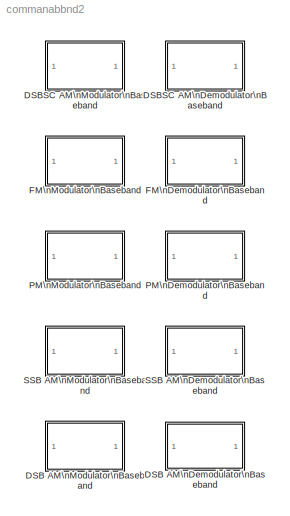
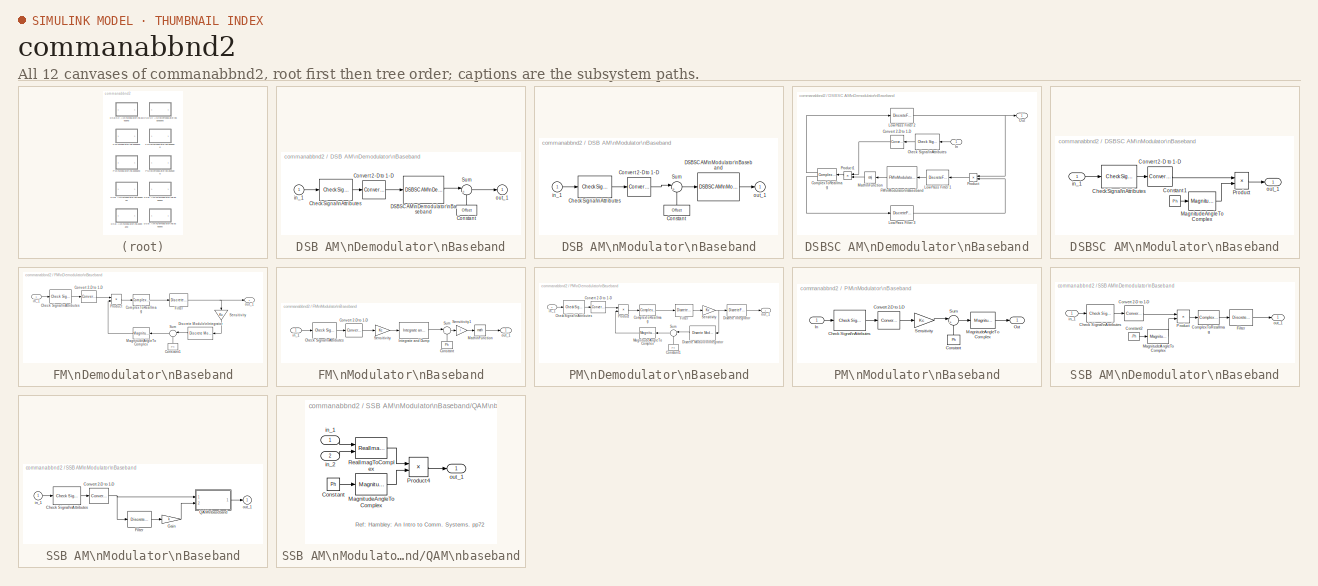
[diagram: thumbnail index - all 12 canvases of the model, root first then tree order]
MODEL commanabbnd2
KIND library
BLOCK [SubSystem] DSB AM\nDemodulator\nBaseband
  MaskCallbackString = ||||
  MaskDescription = Demodulate the complex envelope of a double-sideband amplitude modulated signal. The input signal must be a sample-based scalar.The output is a 1-D scalar.
  MaskDisplay = plot(0,0,100,100,[5+4.5*[0:.15:10] 50 50 50 50+4.5*[0:10]],[85+10*[sin([0:.15:10]*pi*2+cumsum(sin([0:.15:10]*pi/5))/2)] 85 99 75   10*sin([0:10]*pi/5)+85]);\ndisp('DSB AM')
  MaskEnableString = on,on,on,on,on
  MaskHelp = helpview(commbhelp)
  MaskIconFrame = on
  MaskIconOpaque = on
  MaskIconRotate = none
  MaskIconUnits = autoscale
  MaskInitialization = if ((length(Ph)~=1) | (length(Offset)~=1) | (length(ts)~=1))error('Mask parameters must be scalar values.');end;
  MaskPromptString = Output signal offset:|Lowpass filter numerator:|Lowpass filter denominator:|Initial phase (rad):|Sample time (s):
  MaskStyleString = edit,edit,edit,edit,edit
  MaskToolTipString = on,on,on,on,on
  MaskTunableValueString = on,on,on,on,on
  MaskType = DSB AM Demodulator Baseband
  MaskValueString = 1|[4.57 9.14 4.57]*.01|[1 -1.3108 .4936]|0|0.001
  MaskVarAliasString = ,,,,
  MaskVariables = Offset=@1;num=@2;den=@3;Ph=@4;ts=@5;
  MaskVisibilityString = on,on,on,on,on
  Ports = [1, 1]
  TreatAsAtomicUnit = off
BLOCK [Reference] DSB AM\nDemodulator\nBaseband/Check Signal\nAttributes  REF=dspsigattribs/Check Signal\nAttributes
  Complexity = Ignore
  DatatypeCheckMethod = Ignore
  DatatypeGeneral = Boolean
  Dimensions = Scalar (1-D or 2-D)
  DimsCheckMethod = Is...
  DtypeFixedSpecific = Any fixed-point
  DtypeFloatSpecific = Any floating-point
  DtypeIntSpecific = Any integer
  Frame = Sample-based
  Ports = [1, 1]
  SampleMode = Ignore
  SigAttribCheckMethod = Does not match attributes exactly
  SourceBlock = dspsigattribs/Check Signal\nAttributes
  SourceType = Check Signal Attributes
BLOCK [Constant] DSB AM\nDemodulator\nBaseband/Constant
  Value = Offset
BLOCK [Reference] DSB AM\nDemodulator\nBaseband/Convert 2-D to 1-D  REF=dspsigattribs/Convert 2-D to 1-D
  Ports = [1, 1]
  SourceBlock = dspsigattribs/Convert 2-D to 1-D
  SourceType = Convert 2-D to 1-D
BLOCK [Reference] DSB AM\nDemodulator\nBaseband/DSBSC AM\nDemodulator\nBaseband  REF=commanabbnd2/DSBSC AM\nDemodulator\nBaseband
  Ph = Ph
  Ports = [1, 1]
  SourceBlock = commanabbnd2/DSBSC AM\nDemodulator\nBaseband
  SourceType = DSBSC AM Demodulator Baseband
  den = den
  num = num
  ts = ts
BLOCK [Sum] DSB AM\nDemodulator\nBaseband/Sum
  IconShape = round
  Inputs = |+-
  Ports = [2, 1]
BLOCK [Inport] DSB AM\nDemodulator\nBaseband/in_1
BLOCK [Outport] DSB AM\nDemodulator\nBaseband/out_1
  InitialOutput = 0
BLOCK [SubSystem] DSB AM\nModulator\nBaseband
  MaskCallbackString = |
  MaskDescription = Output complex envelope of a double-sideband amplitude modulated signal. The input signal must be a sample-based scalar. The output is a 1-D scalar.
  MaskDisplay = plot(0,0,100,100,[4.5*[0:10]+5 50 50 50 50+4.5*[0:.15:10]],[10*sin([0:10]*pi/5)+85 85 99 75 85+10*[sin([0:.15:10]*pi*2+cumsum(sin([0:.15:10]*pi/5))/2)]]);\ndisp('DSB AM')
  MaskEnableString = on,on
  MaskHelp = helpview(commbhelp)
  MaskIconFrame = on
  MaskIconOpaque = on
  MaskIconRotate = none
  MaskIconUnits = autoscale
  MaskInitialization = if ((length(Ph)~=1) | (length(Offset)~=1))error('Mask parameters must be scalar values.');end;
  MaskPromptString = Input signal offset:|Initial phase (rad):
  MaskStyleString = edit,edit
  MaskToolTipString = on,on
  MaskTunableValueString = on,on
  MaskType = DSB AM Modulator Baseband
  MaskValueString = 1|0
  MaskVarAliasString = ,
  MaskVariables = Offset=@1;Ph=@2;
  MaskVisibilityString = on,on
  Ports = [1, 1]
  TreatAsAtomicUnit = off
BLOCK [Reference] DSB AM\nModulator\nBaseband/Check Signal\nAttributes  REF=dspsigattribs/Check Signal\nAttributes
  Complexity = Ignore
  DatatypeCheckMethod = Ignore
  DatatypeGeneral = Boolean
  Dimensions = Scalar (1-D or 2-D)
  DimsCheckMethod = Is...
  DtypeFixedSpecific = Any fixed-point
  DtypeFloatSpecific = Any floating-point
  DtypeIntSpecific = Any integer
  Frame = Sample-based
  Ports = [1, 1]
  SampleMode = Ignore
  SigAttribCheckMethod = Does not match attributes exactly
  SourceBlock = dspsigattribs/Check Signal\nAttributes
  SourceType = Check Signal Attributes
BLOCK [Constant] DSB AM\nModulator\nBaseband/Constant
  Value = Offset
BLOCK [Reference] DSB AM\nModulator\nBaseband/Convert 2-D to 1-D  REF=dspsigattribs/Convert 2-D to 1-D
  Ports = [1, 1]
  SourceBlock = dspsigattribs/Convert 2-D to 1-D
  SourceType = Convert 2-D to 1-D
BLOCK [Reference] DSB AM\nModulator\nBaseband/DSBSC AM\nModulator\nBaseband  REF=commanabbnd2/DSBSC AM\nModulator\nBaseband
  Ph = Ph
  Ports = [1, 1]
  SourceBlock = commanabbnd2/DSBSC AM\nModulator\nBaseband
  SourceType = DSBSC AM Modulator Baseband
BLOCK [Sum] DSB AM\nModulator\nBaseband/Sum
  IconShape = round
  Inputs = |++
  Ports = [2, 1]
BLOCK [Inport] DSB AM\nModulator\nBaseband/in_1
BLOCK [Outport] DSB AM\nModulator\nBaseband/out_1
  InitialOutput = 0
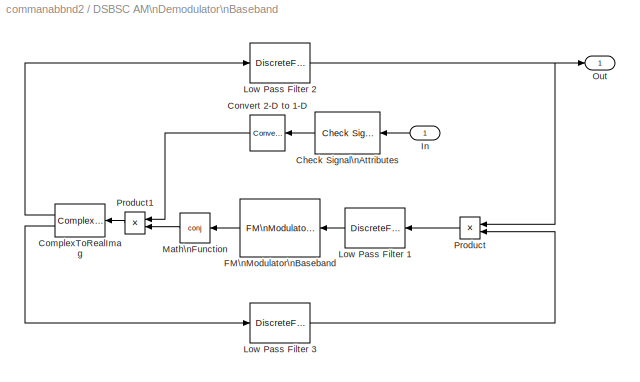
BLOCK [SubSystem] DSBSC AM\nDemodulator\nBaseband
  MaskCallbackString = |||
  MaskDescription = Demodulate the complex envelope of a double-sideband suppressed carrier amplitude modulated signal. The input signal must be a sample-based scalar. The output is a 1-D scalar.
  MaskDisplay = plot(0,0,100,100,[5+4.5*[0:.15:10] 50 50 50 50+4.5*[0:10]],[85+10*[sin([0:.15:10]*pi*2+cumsum(sin([0:.15:10]*pi/5))/2)] 85 99 75   10*sin([0:10]*pi/5)+85]);\ndisp('DSBSC AM')
  MaskEnableString = on,on,on,on
  MaskHelp = helpview(commbhelp)
  MaskIconFrame = on
  MaskIconOpaque = on
  MaskIconRotate = none
  MaskIconUnits = autoscale
  MaskInitialization = if ((length(Ph)~=1) | (length(ts)~=1))error('Mask parameters must be scalar values.');end;\npi2=pi*2;\n
  MaskPromptString = Lowpass filter numerator:|Lowpass filter denominator:|Initial phase (rad):|Sample time (s):
  MaskStyleString = edit,edit,edit,edit
  MaskToolTipString = on,on,on,on
  MaskTunableValueString = on,on,on,on
  MaskType = DSBSC AM Demodulator Baseband
  MaskValueString = [4.57 9.14 4.57]*.01|[1 -1.3108 .4936]|pi/2|0.001
  MaskVarAliasString = ,,,
  MaskVariables = num=@1;den=@2;Ph=@3;ts=@4;
  MaskVisibilityString = on,on,on,on
  Ports = [1, 1]
  TreatAsAtomicUnit = off
BLOCK [Reference] DSBSC AM\nDemodulator\nBaseband/Check Signal\nAttributes  REF=dspsigattribs/Check Signal\nAttributes
  Complexity = Ignore
  DatatypeCheckMethod = Ignore
  DatatypeGeneral = Boolean
  Dimensions = Scalar (1-D or 2-D)
  DimsCheckMethod = Is...
  DtypeFixedSpecific = Any fixed-point
  DtypeFloatSpecific = Any floating-point
  DtypeIntSpecific = Any integer
  Frame = Sample-based
  Ports = [1, 1]
  SampleMode = Ignore
  SigAttribCheckMethod = Does not match attributes exactly
  SourceBlock = dspsigattribs/Check Signal\nAttributes
  SourceType = Check Signal Attributes
BLOCK [ComplexToRealImag] DSBSC AM\nDemodulator\nBaseband/ComplexToRealImag
  Output = Real and imag
  Ports = [1, 2]
BLOCK [Reference] DSBSC AM\nDemodulator\nBaseband/Convert 2-D to 1-D  REF=dspsigattribs/Convert 2-D to 1-D
  Ports = [1, 1]
  SourceBlock = dspsigattribs/Convert 2-D to 1-D
  SourceType = Convert 2-D to 1-D
BLOCK [Reference] DSBSC AM\nDemodulator\nBaseband/FM\nModulator\nBaseband  REF=commanabbnd2/FM\nModulator\nBaseband
  HzPerV = 1
  Ph = Ph
  Ports = [1, 1]
  SourceBlock = commanabbnd2/FM\nModulator\nBaseband
  SourceType = FM Modulator Baseband
  td = Inf
  ts = ts
BLOCK [Inport] DSBSC AM\nDemodulator\nBaseband/In
  MaskIconFrame = on
  MaskIconOpaque = on
  MaskIconRotate = none
  MaskIconUnits = autoscale
BLOCK [DiscreteFilter] DSBSC AM\nDemodulator\nBaseband/Low Pass Filter 1
  Denominator = den
  Numerator = num
  SampleTime = ts
BLOCK [DiscreteFilter] DSBSC AM\nDemodulator\nBaseband/Low Pass Filter 2
  Denominator = den
  Numerator = num
  SampleTime = ts
BLOCK [DiscreteFilter] DSBSC AM\nDemodulator\nBaseband/Low Pass Filter 3
  Denominator = den
  Numerator = num
  SampleTime = ts
BLOCK [Math] DSBSC AM\nDemodulator\nBaseband/Math\nFunction
  Operator = conj
  Ports = [1, 1]
BLOCK [Outport] DSBSC AM\nDemodulator\nBaseband/Out
  InitialOutput = 0
BLOCK [Product] DSBSC AM\nDemodulator\nBaseband/Product
  Ports = [2, 1]
BLOCK [Product] DSBSC AM\nDemodulator\nBaseband/Product1
  Ports = [2, 1]
BLOCK [SubSystem] DSBSC AM\nModulator\nBaseband
  MaskDescription = Output the complex envelope of a double-sideband suppressed carrier amplitude modulated signal. The input signal must be a sample-based scalar. The output is a 1-D scalar.
  MaskDisplay = plot(0,0,100,100,[4.5*[0:10]+5 50 50 50 50+4.5*[0:.15:10]],[10*sin([0:10]*pi/5)+85 85 99 75 85+10*[sin([0:.15:10]*pi*2+cumsum(sin([0:.15:10]*pi/5))/2)]]);\ndisp('DSBSC AM')
  MaskEnableString = on
  MaskHelp = helpview(commbhelp)
  MaskIconFrame = on
  MaskIconOpaque = on
  MaskIconRotate = none
  MaskIconUnits = autoscale
  MaskInitialization = if (length(Ph)~=1) error('Mask parameters must be scalar values.');end;\nx1=cos(Ph);x2=sin(Ph);pi2=2*pi;\n
  MaskPromptString = Initial phase (rad):
  MaskStyleString = edit
  MaskToolTipString = on
  MaskTunableValueString = on
  MaskType = DSBSC AM Modulator Baseband
  MaskValueString = pi/2
  MaskVariables = Ph=@1;
  MaskVisibilityString = on
  Ports = [1, 1]
  TreatAsAtomicUnit = off
BLOCK [Reference] DSBSC AM\nModulator\nBaseband/Check Signal\nAttributes  REF=dspsigattribs/Check Signal\nAttributes
  Complexity = Ignore
  DatatypeCheckMethod = Ignore
  DatatypeGeneral = Boolean
  Dimensions = Scalar (1-D or 2-D)
  DimsCheckMethod = Is...
  DtypeFixedSpecific = Any fixed-point
  DtypeFloatSpecific = Any floating-point
  DtypeIntSpecific = Any integer
  Frame = Sample-based
  Ports = [1, 1]
  SampleMode = Ignore
  SigAttribCheckMethod = Does not match attributes exactly
  SourceBlock = dspsigattribs/Check Signal\nAttributes
  SourceType = Check Signal Attributes
BLOCK [Constant] DSBSC AM\nModulator\nBaseband/Constant 1
  Value = Ph
BLOCK [Reference] DSBSC AM\nModulator\nBaseband/Convert 2-D to 1-D  REF=dspsigattribs/Convert 2-D to 1-D
  Ports = [1, 1]
  SourceBlock = dspsigattribs/Convert 2-D to 1-D
  SourceType = Convert 2-D to 1-D
BLOCK [MagnitudeAngleToComplex] DSBSC AM\nModulator\nBaseband/MagnitudeAngleToComplex
  ConstantPart = 1
  Input = Angle
  Ports = [1, 1]
BLOCK [Product] DSBSC AM\nModulator\nBaseband/Product
  Ports = [2, 1]
BLOCK [Inport] DSBSC AM\nModulator\nBaseband/in_1
BLOCK [Outport] DSBSC AM\nModulator\nBaseband/out_1
  InitialOutput = 0
BLOCK [SubSystem] FM\nDemodulator\nBaseband
  MaskCallbackString = ||||
  MaskDescription = Demodulate the complex envelope of a frequency-modulated signal. The input signal must be a sample-based scalar. The output is a 1-D scalar.
  MaskDisplay = plot(0,0,100,100,[5+4.5*[0:.15:10] 50 50 50 50+4.5*[0:10]],[85+10*[sin([0:.15:10]*pi*2+cumsum(sin([0:.15:10]*pi/5))/2)] 85 99 75   10*sin([0:10]*pi/5)+85]);\ndisp('FM')
  MaskEnableString = on,on,on,on,on
  MaskHelp = helpview(commbhelp)
  MaskIconFrame = on
  MaskIconOpaque = on
  MaskIconRotate = none
  MaskIconUnits = autoscale
  MaskInitialization = if ((length(Ph)~=1) | (length(HzPerVolt)~=1) | (length(ts)~=1))error('Mask parameters must be scalar values.');end;\npi2=2*pi;\nKc=2*pi*HzPerVolt;
  MaskPromptString = Initial phase (rad):|Modulation constant (Hertz per volt):|Lowpass filter numerator:|Lowpass filter denominator:|Sample time (s):
  MaskStyleString = edit,edit,edit,edit,edit
  MaskToolTipString = on,on,on,on,on
  MaskTunableValueString = on,on,on,on,on
  MaskType = FM Demodulator Baseband
  MaskValueString = 0|1|[4.57 9.14 4.57]*.01|[1 -1.3108 .4936]|0.001
  MaskVarAliasString = ,,,,
  MaskVariables = Ph=@1;HzPerVolt=@2;num=@3;den=@4;ts=@5;
  MaskVisibilityString = on,on,on,on,on
  Ports = [1, 1]
  TreatAsAtomicUnit = off
BLOCK [Reference] FM\nDemodulator\nBaseband/Check Signal\nAttributes  REF=dspsigattribs/Check Signal\nAttributes
  Complexity = Ignore
  DatatypeCheckMethod = Ignore
  DatatypeGeneral = Boolean
  Dimensions = Scalar (1-D or 2-D)
  DimsCheckMethod = Is...
  DtypeFixedSpecific = Any fixed-point
  DtypeFloatSpecific = Any floating-point
  DtypeIntSpecific = Any integer
  Frame = Sample-based
  Ports = [1, 1]
  SampleMode = Ignore
  SigAttribCheckMethod = Does not match attributes exactly
  SourceBlock = dspsigattribs/Check Signal\nAttributes
  SourceType = Check Signal Attributes
BLOCK [ComplexToRealImag] FM\nDemodulator\nBaseband/ComplexToRealImag
  Output = Imag
  Ports = [1, 1]
BLOCK [Constant] FM\nDemodulator\nBaseband/Constant1
  MaskIconFrame = on
  MaskIconOpaque = on
  MaskIconRotate = none
  MaskIconUnits = autoscale
  Value = Ph
BLOCK [Reference] FM\nDemodulator\nBaseband/Convert 2-D to 1-D  REF=dspsigattribs/Convert 2-D to 1-D
  Ports = [1, 1]
  SourceBlock = dspsigattribs/Convert 2-D to 1-D
  SourceType = Convert 2-D to 1-D
BLOCK [Reference] FM\nDemodulator\nBaseband/Discrete Modulo\nIntegrator  REF=comminteg2/Discrete Modulo\nIntegrator
  Ports = [1, 1]
  SourceBlock = comminteg2/Discrete Modulo\nIntegrator
  SourceType = Discrete Modulo Integrator
  init = 0
  modu = pi2
  ts = ts
BLOCK [DiscreteFilter] FM\nDemodulator\nBaseband/Filter
  Denominator = den
  Numerator = num
  SampleTime = ts
BLOCK [MagnitudeAngleToComplex] FM\nDemodulator\nBaseband/MagnitudeAngleToComplex
  ConstantPart = 1
  Input = Angle
  Ports = [1, 1]
BLOCK [Product] FM\nDemodulator\nBaseband/Product
  Ports = [2, 1]
BLOCK [Gain] FM\nDemodulator\nBaseband/Sensitivity
  Gain = Kc
  MaskIconFrame = on
  MaskIconOpaque = on
  MaskIconRotate = none
  MaskIconUnits = autoscale
BLOCK [Sum] FM\nDemodulator\nBaseband/Sum
  IconShape = round
  Inputs = |-+
  MaskIconFrame = on
  MaskIconOpaque = on
  MaskIconRotate = none
  MaskIconUnits = autoscale
  Ports = [2, 1]
BLOCK [Inport] FM\nDemodulator\nBaseband/in_1
BLOCK [Outport] FM\nDemodulator\nBaseband/out_1
  InitialOutput = 0
BLOCK [SubSystem] FM\nModulator\nBaseband
  MaskCallbackString = |||
  MaskDescription = Output complex baseband signal frequency-modulated by the input signal.  For digital modulation, set the Symbol Interval parameter to the desired symbol.  For analog modulation, set the Symbol Interval parameter to Inf. The input signal must be a sample-based scalar. The output is a 1-D scalar.
  MaskDisplay = plot(0,0,100,100,[4.5*[0:10]+5 50 50 50 50+4.5*[0:.15:10]],[10*sin([0:10]*pi/5)+85 85 99 75 85+10*[sin([0:.15:10]*pi*2+cumsum(sin([0:.15:10]*pi/5))/2)]]);\ndisp('FM')
  MaskEnableString = on,on,on,on
  MaskHelp = helpview(commbhelp)
  MaskIconFrame = on
  MaskIconOpaque = on
  MaskIconRotate = none
  MaskIconUnits = autoscale
  MaskInitialization = if ((length(Ph)~=1) | (length(HzPerV)~=1) | (length(ts)~=1) | (length(td)~=1))error('Mask parameters must be scalar values.');end;\nKc =2*pi*HzPerV;if isinf(td),td=realmax;end;\n
  MaskPromptString = Initial phase (rad):|Modulation constant (Hertz per volt):|Sample time (s):|Symbol interval (s):
  MaskStyleString = edit,edit,edit,edit
  MaskToolTipString = on,on,on,on
  MaskTunableValueString = on,on,on,on
  MaskType = FM Modulator Baseband
  MaskValueString = 0|1|0.001|Inf
  MaskVarAliasString = ,,,
  MaskVariables = Ph=@1;HzPerV=@2;ts=@3;td=@4;
  MaskVisibilityString = on,on,on,on
  Ports = [1, 1]
  TreatAsAtomicUnit = off
BLOCK [Reference] FM\nModulator\nBaseband/Check Signal\nAttributes  REF=dspsigattribs/Check Signal\nAttributes
  Complexity = Ignore
  DatatypeCheckMethod = Ignore
  DatatypeGeneral = Boolean
  Dimensions = Scalar (1-D or 2-D)
  DimsCheckMethod = Is...
  DtypeFixedSpecific = Any fixed-point
  DtypeFloatSpecific = Any floating-point
  DtypeIntSpecific = Any integer
  Frame = Sample-based
  Ports = [1, 1]
  SampleMode = Ignore
  SigAttribCheckMethod = Does not match attributes exactly
  SourceBlock = dspsigattribs/Check Signal\nAttributes
  SourceType = Check Signal Attributes
BLOCK [Constant] FM\nModulator\nBaseband/Constant
  Value = Ph
BLOCK [Reference] FM\nModulator\nBaseband/Convert 2-D to 1-D  REF=dspsigattribs/Convert 2-D to 1-D
  Ports = [1, 1]
  SourceBlock = dspsigattribs/Convert 2-D to 1-D
  SourceType = Convert 2-D to 1-D
BLOCK [Reference] FM\nModulator\nBaseband/Integrate and Dump  REF=comminteg2/Integrate and Dump
  Ports = [1, 1]
  SourceBlock = comminteg2/Integrate and Dump
  SourceType = Integrate and Dump
  limit = 2*pi
  td = td
  ts = ts
BLOCK [Math] FM\nModulator\nBaseband/Math\nFunction
  Ports = [1, 1]
BLOCK [Gain] FM\nModulator\nBaseband/Sensitivity
  Gain = Kc
BLOCK [Gain] FM\nModulator\nBaseband/Sensitivity1
  Gain = i
BLOCK [Sum] FM\nModulator\nBaseband/Sum
  IconShape = round
  Inputs = |++
  Ports = [2, 1]
BLOCK [Inport] FM\nModulator\nBaseband/in_1
BLOCK [Outport] FM\nModulator\nBaseband/out_1
  InitialOutput = 0
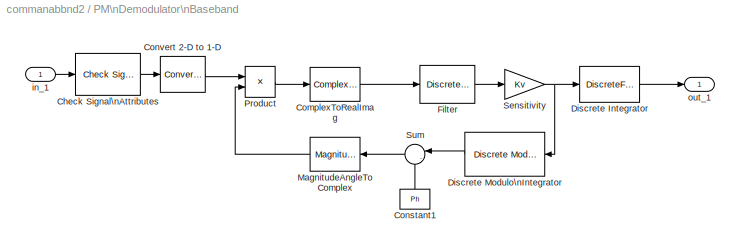
BLOCK [SubSystem] PM\nDemodulator\nBaseband
  MaskCallbackString = |||||
  MaskDescription = Demodulate the complex envelope of a phase-modulated signal. The input signal must be a sample-based scalar. The output is a 1-D scalar.
  MaskDisplay = plot(0,0,100,100,[5+4.5*[0:.15:10] 50 50 50 50+4.5*[0:10]],[85+10*[sin([0:.15:10]*pi*2+cumsum(sin([0:.15:10]*pi/5))/2)] 85 99 75   10*sin([0:10]*pi/5)+85]);\ndisp('PM')
  MaskEnableString = on,on,on,on,on,on
  MaskHelp = helpview(commbhelp)
  MaskIconFrame = on
  MaskIconOpaque = on
  MaskIconRotate = none
  MaskIconUnits = autoscale
  MaskInitialization = if ((length(Ph)~=1) | (length(HzPerVolt)~=1) | (length(ts)~=1) | (length(Kc)~=1))error('Mask parameters must be scalar values.');end;\nKv=2*pi*HzPerVolt;
  MaskPromptString = Initial phase (rad):|Modulation constant (Radians per volt):|Lowpass filter numerator:|Lowpass filter denominator:|VCO gain (Hertz per volt):|Sample time (s):
  MaskStyleString = edit,edit,edit,edit,edit,edit
  MaskToolTipString = on,on,on,on,on,on
  MaskTunableValueString = on,on,on,on,on,on
  MaskType = PM Demodulator Baseband
  MaskValueString = 0|1|[4.57 9.14 4.57]*.01|[1 -1.3108 .4936]|1|0.001
  MaskVarAliasString = ,,,,,
  MaskVariables = Ph=@1;Kc=@2;num=@3;den=@4;HzPerVolt=@5;ts=@6;
  MaskVisibilityString = on,on,on,on,on,on
  Ports = [1, 1]
  TreatAsAtomicUnit = off
BLOCK [Reference] PM\nDemodulator\nBaseband/Check Signal\nAttributes  REF=dspsigattribs/Check Signal\nAttributes
  Complexity = Ignore
  DatatypeCheckMethod = Ignore
  DatatypeGeneral = Boolean
  Dimensions = Scalar (1-D or 2-D)
  DimsCheckMethod = Is...
  DtypeFixedSpecific = Any fixed-point
  DtypeFloatSpecific = Any floating-point
  DtypeIntSpecific = Any integer
  Frame = Sample-based
  Ports = [1, 1]
  SampleMode = Ignore
  SigAttribCheckMethod = Does not match attributes exactly
  SourceBlock = dspsigattribs/Check Signal\nAttributes
  SourceType = Check Signal Attributes
BLOCK [ComplexToRealImag] PM\nDemodulator\nBaseband/ComplexToRealImag
  Output = Imag
  Ports = [1, 1]
BLOCK [Constant] PM\nDemodulator\nBaseband/Constant1
  MaskIconFrame = on
  MaskIconOpaque = on
  MaskIconRotate = none
  MaskIconUnits = autoscale
  Value = Ph
BLOCK [Reference] PM\nDemodulator\nBaseband/Convert 2-D to 1-D  REF=dspsigattribs/Convert 2-D to 1-D
  Ports = [1, 1]
  SourceBlock = dspsigattribs/Convert 2-D to 1-D
  SourceType = Convert 2-D to 1-D
BLOCK [DiscreteFilter] PM\nDemodulator\nBaseband/Discrete Integrator
  Denominator = [1 -1]*Kc
  Numerator = ts(1)
  SampleTime = ts
BLOCK [Reference] PM\nDemodulator\nBaseband/Discrete Modulo\nIntegrator  REF=comminteg2/Discrete Modulo\nIntegrator
  Ports = [1, 1]
  SourceBlock = comminteg2/Discrete Modulo\nIntegrator
  SourceType = Discrete Modulo Integrator
  init = 0
  modu = 2*pi
  ts = ts
BLOCK [DiscreteFilter] PM\nDemodulator\nBaseband/Filter
  Denominator = den
  Numerator = num
  SampleTime = ts
BLOCK [MagnitudeAngleToComplex] PM\nDemodulator\nBaseband/MagnitudeAngleToComplex
  ConstantPart = 1
  Input = Angle
  Ports = [1, 1]
BLOCK [Product] PM\nDemodulator\nBaseband/Product
  Ports = [2, 1]
BLOCK [Gain] PM\nDemodulator\nBaseband/Sensitivity
  Gain = Kv
  MaskIconFrame = on
  MaskIconOpaque = on
  MaskIconRotate = none
  MaskIconUnits = autoscale
BLOCK [Sum] PM\nDemodulator\nBaseband/Sum
  IconShape = round
  Inputs = |--
  MaskIconFrame = on
  MaskIconOpaque = on
  MaskIconRotate = none
  MaskIconUnits = autoscale
  Ports = [2, 1]
BLOCK [Inport] PM\nDemodulator\nBaseband/in_1
BLOCK [Outport] PM\nDemodulator\nBaseband/out_1
  InitialOutput = 0
BLOCK [SubSystem] PM\nModulator\nBaseband
  MaskCallbackString = |
  MaskDescription = Output the complex envelope of a phase-modulated signal. The input signal must be a sample-based scalar. The output is a 1-D scalar.
  MaskDisplay = plot(0,0,100,100,[4.5*[0:10]+5 50 50 50 50+4.5*[0:.15:10]],[10*sin([0:10]*pi/5)+85 85 99 75 85+10*[sin([0:.15:10]*pi*2+cumsum(sin([0:.15:10]*pi/5))/2)]]);\ndisp('PM')
  MaskEnableString = on,on
  MaskHelp = helpview(commbhelp)
  MaskIconFrame = on
  MaskIconOpaque = on
  MaskIconRotate = none
  MaskIconUnits = autoscale
  MaskInitialization = if ((length(Ph)~=1) | (length(Kc)~=1))error('Mask parameters must be scalar values.');end;\n
  MaskPromptString = Initial phase (rad):|Modulation constant (Radians per volt):
  MaskStyleString = edit,edit
  MaskToolTipString = on,on
  MaskTunableValueString = on,on
  MaskType = PM Modulator Baseband
  MaskValueString = 0|1
  MaskVarAliasString = ,
  MaskVariables = Ph=@1;Kc=@2;
  MaskVisibilityString = on,on
  Ports = [1, 1]
  TreatAsAtomicUnit = off
BLOCK [Reference] PM\nModulator\nBaseband/Check Signal\nAttributes  REF=dspsigattribs/Check Signal\nAttributes
  Complexity = Ignore
  DatatypeCheckMethod = Ignore
  DatatypeGeneral = Boolean
  Dimensions = Scalar (1-D or 2-D)
  DimsCheckMethod = Is...
  DtypeFixedSpecific = Any fixed-point
  DtypeFloatSpecific = Any floating-point
  DtypeIntSpecific = Any integer
  Frame = Sample-based
  Ports = [1, 1]
  SampleMode = Ignore
  SigAttribCheckMethod = Does not match attributes exactly
  SourceBlock = dspsigattribs/Check Signal\nAttributes
  SourceType = Check Signal Attributes
BLOCK [Constant] PM\nModulator\nBaseband/Constant
  Value = Ph
BLOCK [Reference] PM\nModulator\nBaseband/Convert 2-D to 1-D  REF=dspsigattribs/Convert 2-D to 1-D
  Ports = [1, 1]
  SourceBlock = dspsigattribs/Convert 2-D to 1-D
  SourceType = Convert 2-D to 1-D
BLOCK [Inport] PM\nModulator\nBaseband/In
BLOCK [MagnitudeAngleToComplex] PM\nModulator\nBaseband/MagnitudeAngleToComplex
  ConstantPart = 1
  Input = Angle
  Ports = [1, 1]
BLOCK [Outport] PM\nModulator\nBaseband/Out
  InitialOutput = 0
BLOCK [Gain] PM\nModulator\nBaseband/Sensitivity
  Gain = Kc
BLOCK [Sum] PM\nModulator\nBaseband/Sum
  IconShape = round
  Inputs = |++
  Ports = [2, 1]
BLOCK [SubSystem] SSB AM\nDemodulator\nBaseband
  MaskCallbackString = |||
  MaskDescription = Demodulate the complex envelope of a single-sideband amplitude modulated signal. The input signal must be a sample-based scalar. The output is a 1-D scalar.
  MaskDisplay = plot(0,0,100,100,[5+4.5*[0:.15:10] 50 50 50 50+4.5*[0:10]],[85+10*[sin([0:.15:10]*pi*2+cumsum(sin([0:.15:10]*pi/5))/2)] 85 99 75   10*sin([0:10]*pi/5)+85]);\ndisp('SSB AM')
  MaskEnableString = on,on,on,on
  MaskHelp = helpview(commbhelp)
  MaskIconFrame = on
  MaskIconOpaque = on
  MaskIconRotate = none
  MaskIconUnits = autoscale
  MaskInitialization = if ((length(Ph)~=1) | (length(ts)~=1))error('Mask parameters must be scalar values.');end;\nx1=cos(-Ph);x2=sin(-Ph);\n
  MaskPromptString = Lowpass filter numerator:|Lowpass filter denominator:|Initial phase (rad):|Sample time (s):
  MaskStyleString = edit,edit,edit,edit
  MaskToolTipString = on,on,on,on
  MaskTunableValueString = on,on,on,on
  MaskType = SSB AM Demodulator Baseband
  MaskValueString = [4.57 9.14 4.57]*.01|[1 -1.3108 .4936]|0|0.001
  MaskVarAliasString = ,,,
  MaskVariables = num=@1;den=@2;Ph=@3;ts=@4;
  MaskVisibilityString = on,on,on,on
  Ports = [1, 1]
  TreatAsAtomicUnit = off
BLOCK [Reference] SSB AM\nDemodulator\nBaseband/Check Signal\nAttributes  REF=dspsigattribs/Check Signal\nAttributes
  Complexity = Ignore
  DatatypeCheckMethod = Ignore
  DatatypeGeneral = Boolean
  Dimensions = Scalar (1-D or 2-D)
  DimsCheckMethod = Is...
  DtypeFixedSpecific = Any fixed-point
  DtypeFloatSpecific = Any floating-point
  DtypeIntSpecific = Any integer
  Frame = Sample-based
  Ports = [1, 1]
  SampleMode = Ignore
  SigAttribCheckMethod = Does not match attributes exactly
  SourceBlock = dspsigattribs/Check Signal\nAttributes
  SourceType = Check Signal Attributes
BLOCK [ComplexToRealImag] SSB AM\nDemodulator\nBaseband/ComplexToRealImag
  Output = Real
  Ports = [1, 1]
BLOCK [Constant] SSB AM\nDemodulator\nBaseband/Constant2
  Value = -Ph
BLOCK [Reference] SSB AM\nDemodulator\nBaseband/Convert 2-D to 1-D  REF=dspsigattribs/Convert 2-D to 1-D
  Ports = [1, 1]
  SourceBlock = dspsigattribs/Convert 2-D to 1-D
  SourceType = Convert 2-D to 1-D
BLOCK [DiscreteFilter] SSB AM\nDemodulator\nBaseband/Filter
  Denominator = den
  Numerator = num
  SampleTime = ts
BLOCK [MagnitudeAngleToComplex] SSB AM\nDemodulator\nBaseband/MagnitudeAngleToComplex
  ConstantPart = 1
  Input = Angle
  Ports = [1, 1]
BLOCK [Product] SSB AM\nDemodulator\nBaseband/Product
  Ports = [2, 1]
BLOCK [Inport] SSB AM\nDemodulator\nBaseband/in_1
BLOCK [Outport] SSB AM\nDemodulator\nBaseband/out_1
  InitialOutput = 0
BLOCK [SubSystem] SSB AM\nModulator\nBaseband
  MaskCallbackString = ||||
  MaskDescription = Output complex envelope of a single-sideband amplitude modulated signal. The input signal must be a sample-based scalar. The output is a 1-D scalar.
  MaskDisplay = plot(0,0,100,100,[4.5*[0:10]+5 50 50 50 50+4.5*[0:.15:10]],[10*sin([0:10]*pi/5)+85 85 99 75 85+10*[sin([0:.15:10]*pi*2+cumsum(sin([0:.15:10]*pi/5))/2)]]);\ndisp('SSB AM')
  MaskEnableString = on,on,on,on,on
  MaskHelp = helpview(commbhelp)
  MaskIconFrame = on
  MaskIconOpaque = on
  MaskIconRotate = none
  MaskIconUnits = autoscale
  MaskInitialization = if ((length(Ph)~=1) | (length(ban)~=1) | (length(ts)~=1) | (length(dly)~=1))error('Mask parameters must be scalar values.');end;\nif dly/ts<3 error('Time delay is too small compared to the Sample time value');end;\nif ban>1/ts, ban=1/ts-ts;end;if(dly/ts>1000)\nerror(['The filter coefficients will take too long to compute.'...\n        'Try reducing the length of the impulse response by increasing ...<+144ch>
  MaskPromptString = Initial phase (rad):|Bandwidth of the input signal (Hz):|Time delay for Hilbert transform filter (s):|Sample time (s):|Sideband to modulate:
  MaskStyleString = edit,edit,edit,edit,popup(Upper|Lower)
  MaskToolTipString = on,on,on,on,on
  MaskTunableValueString = on,on,on,on,on
  MaskType = SSB AM Modulator Baseband
  MaskValueString = 0|10|0.01|0.001|upper
  MaskVarAliasString = ,,,,
  MaskVariables = Ph=@1;ban=@2;dly=@3;ts=@4;sd=&5;
  MaskVisibilityString = on,on,on,on,on
  Ports = [1, 1]
  TreatAsAtomicUnit = off
BLOCK [Reference] SSB AM\nModulator\nBaseband/Check Signal\nAttributes  REF=dspsigattribs/Check Signal\nAttributes
  Complexity = Ignore
  DatatypeCheckMethod = Ignore
  DatatypeGeneral = Boolean
  Dimensions = Scalar (1-D or 2-D)
  DimsCheckMethod = Is...
  DtypeFixedSpecific = Any fixed-point
  DtypeFloatSpecific = Any floating-point
  DtypeIntSpecific = Any integer
  Frame = Sample-based
  Ports = [1, 1]
  SampleMode = Ignore
  SigAttribCheckMethod = Does not match attributes exactly
  SourceBlock = dspsigattribs/Check Signal\nAttributes
  SourceType = Check Signal Attributes
BLOCK [Reference] SSB AM\nModulator\nBaseband/Convert 2-D to 1-D  REF=dspsigattribs/Convert 2-D to 1-D
  Ports = [1, 1]
  SourceBlock = dspsigattribs/Convert 2-D to 1-D
  SourceType = Convert 2-D to 1-D
BLOCK [DiscreteFilter] SSB AM\nModulator\nBaseband/Filter
  Denominator = den
  Numerator = num
  SampleTime = ts
BLOCK [Gain] SSB AM\nModulator\nBaseband/Gain
  Gain = k
BLOCK [SubSystem] SSB AM\nModulator\nBaseband/QAM\nbaseband
  MaskDescription = Modulate the in-phase and quadrature component signal from the 1st and 2nd input ports, baseband simulation.
  MaskDisplay = plot(0,0,100,100,[4.5*[0:10]+5 50 50 50 50+4.5*[0:.3:10]],[10*sin([0:10]*pi/5)+85 85 99 75 85+10*[sin([0:.3:10]*pi/5).*sin([0:.3:10]*pi*2)]]);\ndisp('QAM')
  MaskEnableString = on
  MaskHelp = helpview(commbhelp)
  MaskIconFrame = on
  MaskIconOpaque = on
  MaskIconRotate = none
  MaskIconUnits = autoscale
  MaskInitialization = \n
  MaskPromptString = Initial phase (rad):
  MaskStyleString = edit
  MaskToolTipString = on
  MaskTunableValueString = on
  MaskType = QAM Baseband
  MaskValueString = Ph
  MaskVariables = Ph=@1;
  MaskVisibilityString = on
  Ports = [2, 1]
  TreatAsAtomicUnit = off
BLOCK [Constant] SSB AM\nModulator\nBaseband/QAM\nbaseband/Constant
  Value = Ph
BLOCK [MagnitudeAngleToComplex] SSB AM\nModulator\nBaseband/QAM\nbaseband/MagnitudeAngleToComplex
  ConstantPart = 1
  Input = Angle
  Ports = [1, 1]
BLOCK [Product] SSB AM\nModulator\nBaseband/QAM\nbaseband/Product4
  Ports = [2, 1]
BLOCK [RealImagToComplex] SSB AM\nModulator\nBaseband/QAM\nbaseband/RealImagToComplex
  Input = Real and imag
  Ports = [2, 1]
BLOCK [Inport] SSB AM\nModulator\nBaseband/QAM\nbaseband/in_1
BLOCK [Inport] SSB AM\nModulator\nBaseband/QAM\nbaseband/in_2
  Port = 2
BLOCK [Outport] SSB AM\nModulator\nBaseband/QAM\nbaseband/out_1
  InitialOutput = 0
BLOCK [Inport] SSB AM\nModulator\nBaseband/in_1
BLOCK [Outport] SSB AM\nModulator\nBaseband/out_1
  InitialOutput = 0
ANNOTATION SSB AM\nModulator\nBaseband/QAM\nbaseband: Ref: Hambley: An Intro to Comm. Systems. pp72
LINE DSB AM\nDemodulator\nBaseband/Check Signal\nAttributes:1 -> DSB AM\nDemodulator\nBaseband/Convert 2-D to 1-D:1
LINE DSB AM\nDemodulator\nBaseband/Constant:1 -> DSB AM\nDemodulator\nBaseband/Sum:2
LINE DSB AM\nDemodulator\nBaseband/Convert 2-D to 1-D:1 -> DSB AM\nDemodulator\nBaseband/DSBSC AM\nDemodulator\nBaseband:1
LINE DSB AM\nDemodulator\nBaseband/DSBSC AM\nDemodulator\nBaseband:1 -> DSB AM\nDemodulator\nBaseband/Sum:1
LINE DSB AM\nDemodulator\nBaseband/Sum:1 -> DSB AM\nDemodulator\nBaseband/out_1:1
LINE DSB AM\nDemodulator\nBaseband/in_1:1 -> DSB AM\nDemodulator\nBaseband/Check Signal\nAttributes:1
LINE DSB AM\nModulator\nBaseband/Check Signal\nAttributes:1 -> DSB AM\nModulator\nBaseband/Convert 2-D to 1-D:1
LINE DSB AM\nModulator\nBaseband/Constant:1 -> DSB AM\nModulator\nBaseband/Sum:2
LINE DSB AM\nModulator\nBaseband/Convert 2-D to 1-D:1 -> DSB AM\nModulator\nBaseband/Sum:1
LINE DSB AM\nModulator\nBaseband/DSBSC AM\nModulator\nBaseband:1 -> DSB AM\nModulator\nBaseband/out_1:1
LINE DSB AM\nModulator\nBaseband/Sum:1 -> DSB AM\nModulator\nBaseband/DSBSC AM\nModulator\nBaseband:1
LINE DSB AM\nModulator\nBaseband/in_1:1 -> DSB AM\nModulator\nBaseband/Check Signal\nAttributes:1
LINE DSBSC AM\nDemodulator\nBaseband/Check Signal\nAttributes:1 -> DSBSC AM\nDemodulator\nBaseband/Convert 2-D to 1-D:1
LINE DSBSC AM\nDemodulator\nBaseband/ComplexToRealImag:1 -> DSBSC AM\nDemodulator\nBaseband/Low Pass Filter 2:1
LINE DSBSC AM\nDemodulator\nBaseband/ComplexToRealImag:2 -> DSBSC AM\nDemodulator\nBaseband/Low Pass Filter 3:1
LINE DSBSC AM\nDemodulator\nBaseband/Convert 2-D to 1-D:1 -> DSBSC AM\nDemodulator\nBaseband/Product1:1
LINE DSBSC AM\nDemodulator\nBaseband/FM\nModulator\nBaseband:1 -> DSBSC AM\nDemodulator\nBaseband/Math\nFunction:1
LINE DSBSC AM\nDemodulator\nBaseband/In:1 -> DSBSC AM\nDemodulator\nBaseband/Check Signal\nAttributes:1
LINE DSBSC AM\nDemodulator\nBaseband/Low Pass Filter 1:1 -> DSBSC AM\nDemodulator\nBaseband/FM\nModulator\nBaseband:1
NET DSBSC AM\nDemodulator\nBaseband/Low Pass Filter 2:1 -> DSBSC AM\nDemodulator\nBaseband/Out:1, DSBSC AM\nDemodulator\nBaseband/Product:1
LINE DSBSC AM\nDemodulator\nBaseband/Low Pass Filter 3:1 -> DSBSC AM\nDemodulator\nBaseband/Product:2
LINE DSBSC AM\nDemodulator\nBaseband/Math\nFunction:1 -> DSBSC AM\nDemodulator\nBaseband/Product1:2
LINE DSBSC AM\nDemodulator\nBaseband/Product1:1 -> DSBSC AM\nDemodulator\nBaseband/ComplexToRealImag:1
LINE DSBSC AM\nDemodulator\nBaseband/Product:1 -> DSBSC AM\nDemodulator\nBaseband/Low Pass Filter 1:1
LINE DSBSC AM\nModulator\nBaseband/Check Signal\nAttributes:1 -> DSBSC AM\nModulator\nBaseband/Convert 2-D to 1-D:1
LINE DSBSC AM\nModulator\nBaseband/Constant 1:1 -> DSBSC AM\nModulator\nBaseband/MagnitudeAngleToComplex:1
LINE DSBSC AM\nModulator\nBaseband/Convert 2-D to 1-D:1 -> DSBSC AM\nModulator\nBaseband/Product:1
LINE DSBSC AM\nModulator\nBaseband/MagnitudeAngleToComplex:1 -> DSBSC AM\nModulator\nBaseband/Product:2
LINE DSBSC AM\nModulator\nBaseband/Product:1 -> DSBSC AM\nModulator\nBaseband/out_1:1
LINE DSBSC AM\nModulator\nBaseband/in_1:1 -> DSBSC AM\nModulator\nBaseband/Check Signal\nAttributes:1
LINE FM\nDemodulator\nBaseband/Check Signal\nAttributes:1 -> FM\nDemodulator\nBaseband/Convert 2-D to 1-D:1
LINE FM\nDemodulator\nBaseband/ComplexToRealImag:1 -> FM\nDemodulator\nBaseband/Filter:1
LINE FM\nDemodulator\nBaseband/Constant1:1 -> FM\nDemodulator\nBaseband/Sum:2
LINE FM\nDemodulator\nBaseband/Convert 2-D to 1-D:1 -> FM\nDemodulator\nBaseband/Product:1
LINE FM\nDemodulator\nBaseband/Discrete Modulo\nIntegrator:1 -> FM\nDemodulator\nBaseband/Sum:1
NET FM\nDemodulator\nBaseband/Filter:1 -> FM\nDemodulator\nBaseband/Sensitivity:1, FM\nDemodulator\nBaseband/out_1:1
LINE FM\nDemodulator\nBaseband/MagnitudeAngleToComplex:1 -> FM\nDemodulator\nBaseband/Product:2
LINE FM\nDemodulator\nBaseband/Product:1 -> FM\nDemodulator\nBaseband/ComplexToRealImag:1
LINE FM\nDemodulator\nBaseband/Sensitivity:1 -> FM\nDemodulator\nBaseband/Discrete Modulo\nIntegrator:1
LINE FM\nDemodulator\nBaseband/Sum:1 -> FM\nDemodulator\nBaseband/MagnitudeAngleToComplex:1
LINE FM\nDemodulator\nBaseband/in_1:1 -> FM\nDemodulator\nBaseband/Check Signal\nAttributes:1
LINE FM\nModulator\nBaseband/Check Signal\nAttributes:1 -> FM\nModulator\nBaseband/Convert 2-D to 1-D:1
LINE FM\nModulator\nBaseband/Constant:1 -> FM\nModulator\nBaseband/Sum:2
LINE FM\nModulator\nBaseband/Convert 2-D to 1-D:1 -> FM\nModulator\nBaseband/Sensitivity:1
LINE FM\nModulator\nBaseband/Integrate and Dump:1 -> FM\nModulator\nBaseband/Sum:1
LINE FM\nModulator\nBaseband/Math\nFunction:1 -> FM\nModulator\nBaseband/out_1:1
LINE FM\nModulator\nBaseband/Sensitivity1:1 -> FM\nModulator\nBaseband/Math\nFunction:1
LINE FM\nModulator\nBaseband/Sensitivity:1 -> FM\nModulator\nBaseband/Integrate and Dump:1
LINE FM\nModulator\nBaseband/Sum:1 -> FM\nModulator\nBaseband/Sensitivity1:1
LINE FM\nModulator\nBaseband/in_1:1 -> FM\nModulator\nBaseband/Check Signal\nAttributes:1
LINE PM\nDemodulator\nBaseband/Check Signal\nAttributes:1 -> PM\nDemodulator\nBaseband/Convert 2-D to 1-D:1
LINE PM\nDemodulator\nBaseband/ComplexToRealImag:1 -> PM\nDemodulator\nBaseband/Filter:1
LINE PM\nDemodulator\nBaseband/Constant1:1 -> PM\nDemodulator\nBaseband/Sum:2
LINE PM\nDemodulator\nBaseband/Convert 2-D to 1-D:1 -> PM\nDemodulator\nBaseband/Product:1
LINE PM\nDemodulator\nBaseband/Discrete Integrator:1 -> PM\nDemodulator\nBaseband/out_1:1
LINE PM\nDemodulator\nBaseband/Discrete Modulo\nIntegrator:1 -> PM\nDemodulator\nBaseband/Sum:1
LINE PM\nDemodulator\nBaseband/Filter:1 -> PM\nDemodulator\nBaseband/Sensitivity:1
LINE PM\nDemodulator\nBaseband/MagnitudeAngleToComplex:1 -> PM\nDemodulator\nBaseband/Product:2
LINE PM\nDemodulator\nBaseband/Product:1 -> PM\nDemodulator\nBaseband/ComplexToRealImag:1
NET PM\nDemodulator\nBaseband/Sensitivity:1 -> PM\nDemodulator\nBaseband/Discrete Integrator:1, PM\nDemodulator\nBaseband/Discrete Modulo\nIntegrator:1
LINE PM\nDemodulator\nBaseband/Sum:1 -> PM\nDemodulator\nBaseband/MagnitudeAngleToComplex:1
LINE PM\nDemodulator\nBaseband/in_1:1 -> PM\nDemodulator\nBaseband/Check Signal\nAttributes:1
LINE PM\nModulator\nBaseband/Check Signal\nAttributes:1 -> PM\nModulator\nBaseband/Convert 2-D to 1-D:1
LINE PM\nModulator\nBaseband/Constant:1 -> PM\nModulator\nBaseband/Sum:2
LINE PM\nModulator\nBaseband/Convert 2-D to 1-D:1 -> PM\nModulator\nBaseband/Sensitivity:1
LINE PM\nModulator\nBaseband/In:1 -> PM\nModulator\nBaseband/Check Signal\nAttributes:1
LINE PM\nModulator\nBaseband/MagnitudeAngleToComplex:1 -> PM\nModulator\nBaseband/Out:1
LINE PM\nModulator\nBaseband/Sensitivity:1 -> PM\nModulator\nBaseband/Sum:1
LINE PM\nModulator\nBaseband/Sum:1 -> PM\nModulator\nBaseband/MagnitudeAngleToComplex:1
LINE SSB AM\nDemodulator\nBaseband/Check Signal\nAttributes:1 -> SSB AM\nDemodulator\nBaseband/Convert 2-D to 1-D:1
LINE SSB AM\nDemodulator\nBaseband/ComplexToRealImag:1 -> SSB AM\nDemodulator\nBaseband/Filter:1
LINE SSB AM\nDemodulator\nBaseband/Constant2:1 -> SSB AM\nDemodulator\nBaseband/MagnitudeAngleToComplex:1
LINE SSB AM\nDemodulator\nBaseband/Convert 2-D to 1-D:1 -> SSB AM\nDemodulator\nBaseband/Product:1
LINE SSB AM\nDemodulator\nBaseband/Filter:1 -> SSB AM\nDemodulator\nBaseband/out_1:1
LINE SSB AM\nDemodulator\nBaseband/MagnitudeAngleToComplex:1 -> SSB AM\nDemodulator\nBaseband/Product:2
LINE SSB AM\nDemodulator\nBaseband/Product:1 -> SSB AM\nDemodulator\nBaseband/ComplexToRealImag:1
LINE SSB AM\nDemodulator\nBaseband/in_1:1 -> SSB AM\nDemodulator\nBaseband/Check Signal\nAttributes:1
LINE SSB AM\nModulator\nBaseband/Check Signal\nAttributes:1 -> SSB AM\nModulator\nBaseband/Convert 2-D to 1-D:1
NET SSB AM\nModulator\nBaseband/Convert 2-D to 1-D:1 -> SSB AM\nModulator\nBaseband/Filter:1, SSB AM\nModulator\nBaseband/QAM\nbaseband:1
LINE SSB AM\nModulator\nBaseband/Filter:1 -> SSB AM\nModulator\nBaseband/Gain:1
LINE SSB AM\nModulator\nBaseband/Gain:1 -> SSB AM\nModulator\nBaseband/QAM\nbaseband:2
LINE SSB AM\nModulator\nBaseband/QAM\nbaseband/Constant:1 -> SSB AM\nModulator\nBaseband/QAM\nbaseband/MagnitudeAngleToComplex:1
LINE SSB AM\nModulator\nBaseband/QAM\nbaseband/MagnitudeAngleToComplex:1 -> SSB AM\nModulator\nBaseband/QAM\nbaseband/Product4:2
LINE SSB AM\nModulator\nBaseband/QAM\nbaseband/Product4:1 -> SSB AM\nModulator\nBaseband/QAM\nbaseband/out_1:1
LINE SSB AM\nModulator\nBaseband/QAM\nbaseband/RealImagToComplex:1 -> SSB AM\nModulator\nBaseband/QAM\nbaseband/Product4:1
LINE SSB AM\nModulator\nBaseband/QAM\nbaseband/in_1:1 -> SSB AM\nModulator\nBaseband/QAM\nbaseband/RealImagToComplex:1
LINE SSB AM\nModulator\nBaseband/QAM\nbaseband/in_2:1 -> SSB AM\nModulator\nBaseband/QAM\nbaseband/RealImagToComplex:2
LINE SSB AM\nModulator\nBaseband/QAM\nbaseband:1 -> SSB AM\nModulator\nBaseband/out_1:1
LINE SSB AM\nModulator\nBaseband/in_1:1 -> SSB AM\nModulator\nBaseband/Check Signal\nAttributes:1
note: NET lines group one-source signal fan-out (src -> all destinations, sorted); 1:1 wires keep LINE
